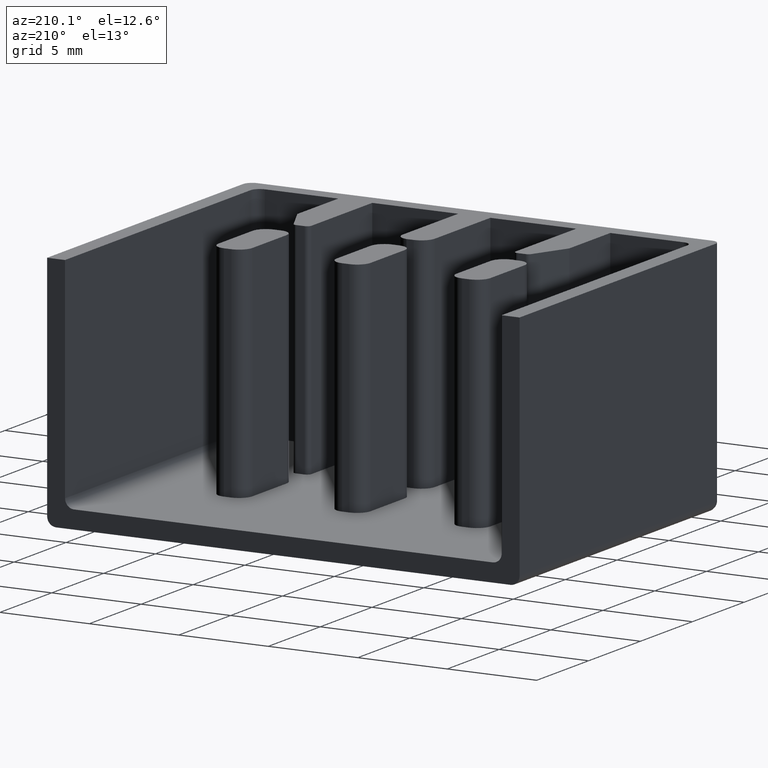
[diagram: clean part render]
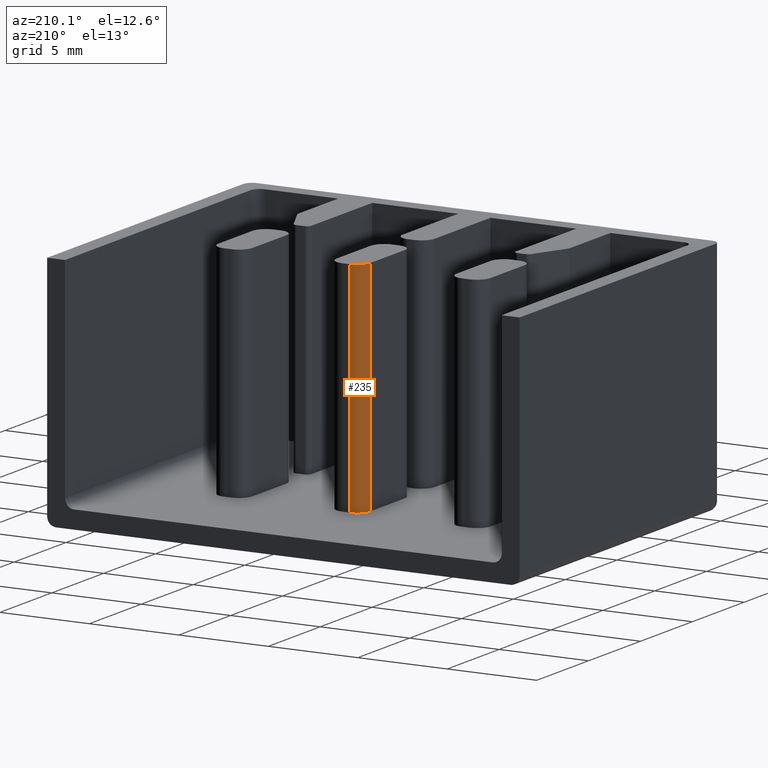
[diagram: same view with one face highlighted and labeled with its STEP entity id]
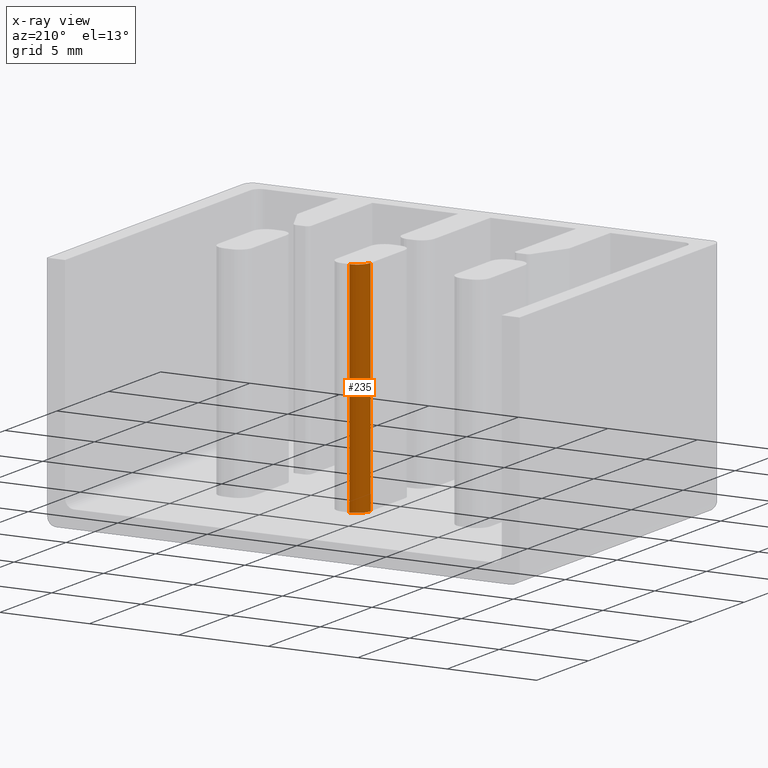
[diagram: x-ray of the same camera — body ghosted, the highlighted face saturated]
A machine part, auxiliary view. The second image highlights one B-rep face of the part: STEP entity #235.
The next image is the same camera in x-ray: the body ghosted, the highlighted face saturated — about 0% of this face is hidden behind the body in this view.
In plain terms, the highlighted cylindrical surface (edge-blend (fillet) strip) has radius 0.75 mm, axis along (-0, -0, -1).
Its self-contained STEP definition (entity closure, byte-faithful):
#12 = EDGE_CURVE ( 'NONE', #776, #749, #288, .T. ) ;
#135 = EDGE_CURVE ( 'NONE', #832, #749, #668, .T. ) ;
#158 = EDGE_CURVE ( 'NONE', #832, #824, #450, .T. ) ;
#169 = EDGE_CURVE ( 'NONE', #824, #776, #2156, .T. ) ;
#235 = ADVANCED_FACE ( 'NONE', ( #1854 ), #1828, .T. ) ;
#283 = AXIS2_PLACEMENT_3D ( 'NONE', #1359, #1368, #1342 ) ;
#288 = CIRCLE ( 'NONE', #283, 0.7500000000000145400 ) ;
#424 = VECTOR ( 'NONE', #689, 1000.000000000000000 ) ;
#450 = CIRCLE ( 'NONE', #451, 0.7500000000000145400 ) ;
#451 = AXIS2_PLACEMENT_3D ( 'NONE', #2166, #2160, #2132 ) ;
#520 = VECTOR ( 'NONE', #2157, 1000.000000000000000 ) ;
#567 = AXIS2_PLACEMENT_3D ( 'NONE', #1845, #1850, #1846 ) ;
#668 = LINE ( 'NONE', #680, #424 ) ;
#680 = CARTESIAN_POINT ( 'NONE',  ( 12.29999999999994400, 12.55000000000003400, 19.68905313798537200 ) ) ;
#689 = DIRECTION ( 'NONE',  ( -0.0000000000000000000, -0.0000000000000000000, -1.000000000000000000 ) ) ;
#749 = VERTEX_POINT ( 'NONE', #2012 ) ;
#776 = VERTEX_POINT ( 'NONE', #1971 ) ;
#824 = VERTEX_POINT ( 'NONE', #2025 ) ;
#832 = VERTEX_POINT ( 'NONE', #2059 ) ;
#1052 = ORIENTED_EDGE ( 'NONE', *, *, #158, .T. ) ;
#1108 = ORIENTED_EDGE ( 'NONE', *, *, #169, .T. ) ;
#1124 = ORIENTED_EDGE ( 'NONE', *, *, #135, .F. ) ;
#1127 = ORIENTED_EDGE ( 'NONE', *, *, #12, .T. ) ;
#1222 = EDGE_LOOP ( 'NONE', ( #1124, #1052, #1108, #1127 ) ) ;
#1342 = DIRECTION ( 'NONE',  ( 1.000000000000000000, 0.0000000000000000000, 0.0000000000000000000 ) ) ;
#1359 = CARTESIAN_POINT ( 'NONE',  ( 13.04999999999994600, 12.55000000000003400, 1.000000000000000000 ) ) ;
#1368 = DIRECTION ( 'NONE',  ( 0.0000000000000000000, 0.0000000000000000000, 1.000000000000000000 ) ) ;
#1828 = CYLINDRICAL_SURFACE ( 'NONE', #567, 0.7500000000000145400 ) ;
#1845 = CARTESIAN_POINT ( 'NONE',  ( 13.04999999999994600, 12.55000000000003400, 19.68905313798537200 ) ) ;
#1846 = DIRECTION ( 'NONE',  ( -1.000000000000000000, 0.0000000000000000000, 0.0000000000000000000 ) ) ;
#1850 = DIRECTION ( 'NONE',  ( -0.0000000000000000000, -0.0000000000000000000, -1.000000000000000000 ) ) ;
#1854 = FACE_OUTER_BOUND ( 'NONE', #1222, .T. ) ;
#1971 = CARTESIAN_POINT ( 'NONE',  ( 13.04999999999997200, 13.30000000000005000, 1.000000000000000900 ) ) ;
#2012 = CARTESIAN_POINT ( 'NONE',  ( 12.29999999999994400, 12.55000000000003400, 1.000000000000000000 ) ) ;
#2025 = CARTESIAN_POINT ( 'NONE',  ( 13.04999999999997200, 13.30000000000006300, 13.30000000000000100 ) ) ;
#2059 = CARTESIAN_POINT ( 'NONE',  ( 12.29999999999994400, 12.55000000000003400, 13.30000000000000100 ) ) ;
#2132 = DIRECTION ( 'NONE',  ( -1.000000000000000000, 0.0000000000000000000, 0.0000000000000000000 ) ) ;
#2136 = CARTESIAN_POINT ( 'NONE',  ( 13.04999999999997200, 13.30000000000006300, 19.68905313798537200 ) ) ;
#2156 = LINE ( 'NONE', #2136, #520 ) ;
#2157 = DIRECTION ( 'NONE',  ( -0.0000000000000000000, -0.0000000000000000000, -1.000000000000000000 ) ) ;
#2160 = DIRECTION ( 'NONE',  ( 0.0000000000000000000, 0.0000000000000000000, -1.000000000000000000 ) ) ;
#2166 = CARTESIAN_POINT ( 'NONE',  ( 13.04999999999994600, 12.55000000000003400, 13.30000000000000100 ) ) ;